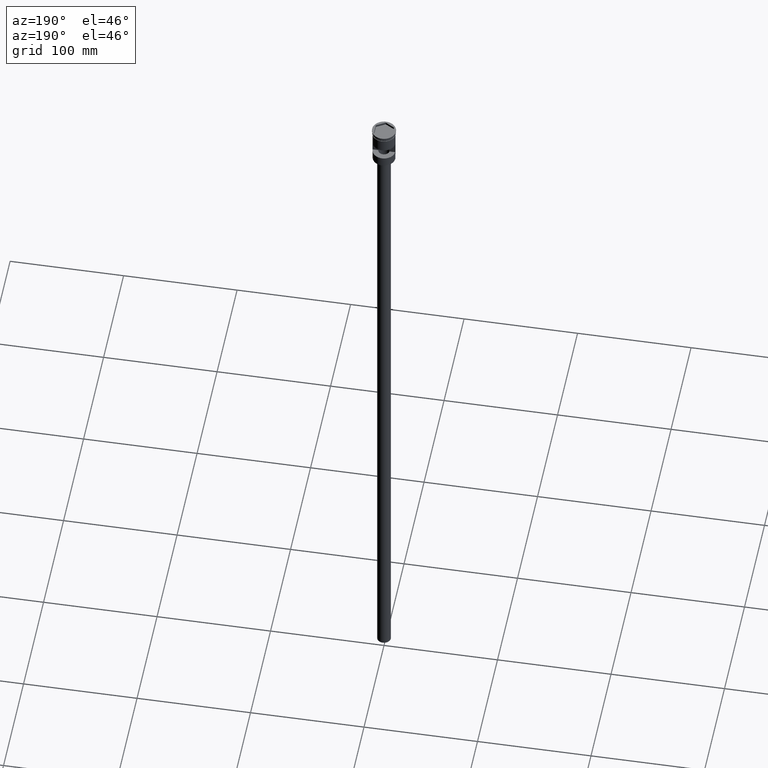
[diagram: clean part render]
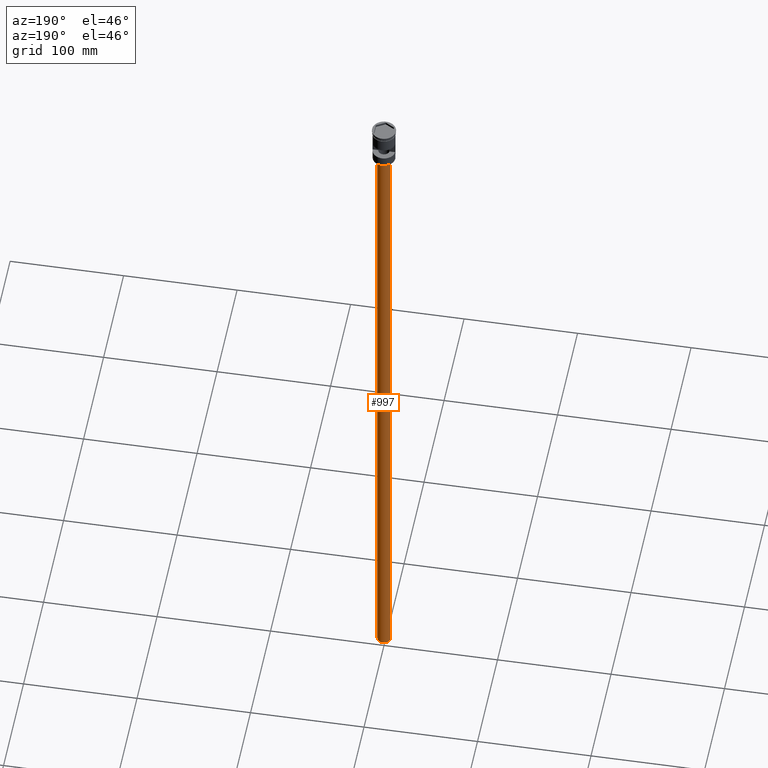
[diagram: same view with one face highlighted and labeled with its STEP entity id]
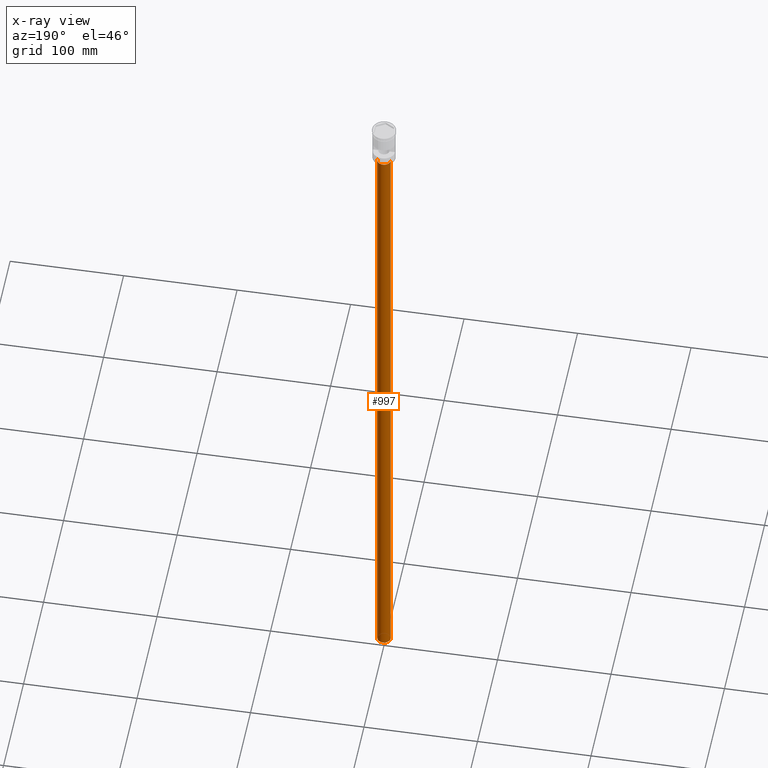
[diagram: x-ray of the same camera — body ghosted, the highlighted face saturated]
A machine part, auxiliary view. The second image highlights one B-rep face of the part: STEP entity #997.
The next image is the same camera in x-ray: the body ghosted, the highlighted face saturated — about 0% of this face is hidden behind the body in this view.
In plain terms, the highlighted cylindrical surface (edge-blend (fillet) strip) has radius 6 mm, axis along (-0, -0, 1).
Its self-contained STEP definition (entity closure, byte-faithful):
#45 = AXIS2_PLACEMENT_3D ( 'NONE', #343, #1248, #1591 ) ;
#50 = CARTESIAN_POINT ( 'NONE',  ( 0.000000000000000000, 0.000000000000000000, -634.0000000000000000 ) ) ;
#103 = EDGE_CURVE ( 'NONE', #977, #114, #354, .T. ) ;
#114 = VERTEX_POINT ( 'NONE', #763 ) ;
#127 = LINE ( 'NONE', #145, #1128 ) ;
#145 = CARTESIAN_POINT ( 'NONE',  ( 6.000000000000000888, 0.000000000000000000, -634.0000000000000000 ) ) ;
#260 = ORIENTED_EDGE ( 'NONE', *, *, #750, .T. ) ;
#321 = VERTEX_POINT ( 'NONE', #1409 ) ;
#343 = CARTESIAN_POINT ( 'NONE',  ( 0.000000000000000000, 0.000000000000000000, -37.00000000000000000 ) ) ;
#354 = LINE ( 'NONE', #486, #1215 ) ;
#357 = ORIENTED_EDGE ( 'NONE', *, *, #103, .T. ) ;
#417 = DIRECTION ( 'NONE',  ( -1.000000000000000000, 0.000000000000000000, 0.000000000000000000 ) ) ;
#486 = CARTESIAN_POINT ( 'NONE',  ( -6.000000000000000888, 7.347880794884120722E-16, -634.0000000000000000 ) ) ;
#523 = ORIENTED_EDGE ( 'NONE', *, *, #1276, .F. ) ;
#584 = VERTEX_POINT ( 'NONE', #1314 ) ;
#627 = DIRECTION ( 'NONE',  ( -0.000000000000000000, -0.000000000000000000, 1.000000000000000000 ) ) ;
#675 = DIRECTION ( 'NONE',  ( -0.000000000000000000, -0.000000000000000000, 1.000000000000000000 ) ) ;
#705 = CIRCLE ( 'NONE', #45, 6.000000000000000888 ) ;
#750 = EDGE_CURVE ( 'NONE', #114, #321, #705, .T. ) ;
#763 = CARTESIAN_POINT ( 'NONE',  ( -6.000000000000000888, 7.347880794884120722E-16, -37.00000000000000000 ) ) ;
#814 = FACE_OUTER_BOUND ( 'NONE', #1487, .T. ) ;
#977 = VERTEX_POINT ( 'NONE', #1303 ) ;
#987 = ORIENTED_EDGE ( 'NONE', *, *, #1515, .F. ) ;
#990 = DIRECTION ( 'NONE',  ( -0.000000000000000000, -0.000000000000000000, 1.000000000000000000 ) ) ;
#997 = ADVANCED_FACE ( 'NONE', ( #814 ), #1295, .T. ) ;
#1024 = CIRCLE ( 'NONE', #1553, 6.000000000000000888 ) ;
#1039 = CARTESIAN_POINT ( 'NONE',  ( 0.000000000000000000, 0.000000000000000000, -634.0000000000000000 ) ) ;
#1128 = VECTOR ( 'NONE', #627, 1000.000000000000000 ) ;
#1215 = VECTOR ( 'NONE', #990, 1000.000000000000000 ) ;
#1248 = DIRECTION ( 'NONE',  ( 0.000000000000000000, 0.000000000000000000, -1.000000000000000000 ) ) ;
#1276 = EDGE_CURVE ( 'NONE', #584, #321, #127, .T. ) ;
#1295 = CYLINDRICAL_SURFACE ( 'NONE', #1574, 6.000000000000000888 ) ;
#1303 = CARTESIAN_POINT ( 'NONE',  ( -6.000000000000000888, 7.347880794884120722E-16, -634.0000000000000000 ) ) ;
#1314 = CARTESIAN_POINT ( 'NONE',  ( 6.000000000000000888, 0.000000000000000000, -634.0000000000000000 ) ) ;
#1409 = CARTESIAN_POINT ( 'NONE',  ( 6.000000000000000888, 0.000000000000000000, -37.00000000000000000 ) ) ;
#1422 = DIRECTION ( 'NONE',  ( 1.000000000000000000, 0.000000000000000000, 0.000000000000000000 ) ) ;
#1487 = EDGE_LOOP ( 'NONE', ( #987, #357, #260, #523 ) ) ;
#1515 = EDGE_CURVE ( 'NONE', #977, #584, #1024, .T. ) ;
#1548 = DIRECTION ( 'NONE',  ( 0.000000000000000000, 0.000000000000000000, -1.000000000000000000 ) ) ;
#1553 = AXIS2_PLACEMENT_3D ( 'NONE', #1039, #1548, #417 ) ;
#1574 = AXIS2_PLACEMENT_3D ( 'NONE', #50, #675, #1422 ) ;
#1591 = DIRECTION ( 'NONE',  ( -1.000000000000000000, 0.000000000000000000, 0.000000000000000000 ) ) ;